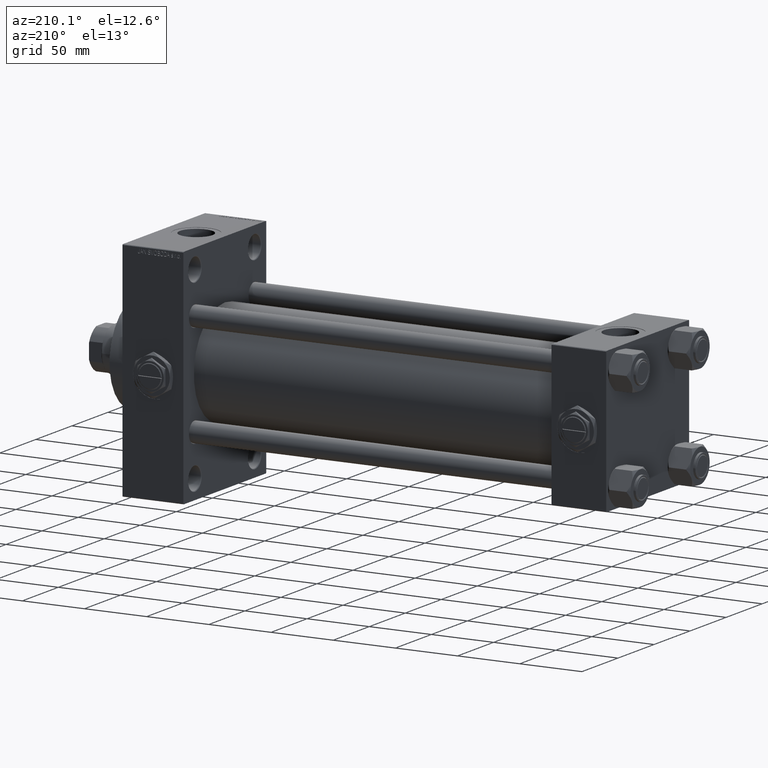
[diagram: clean part render]
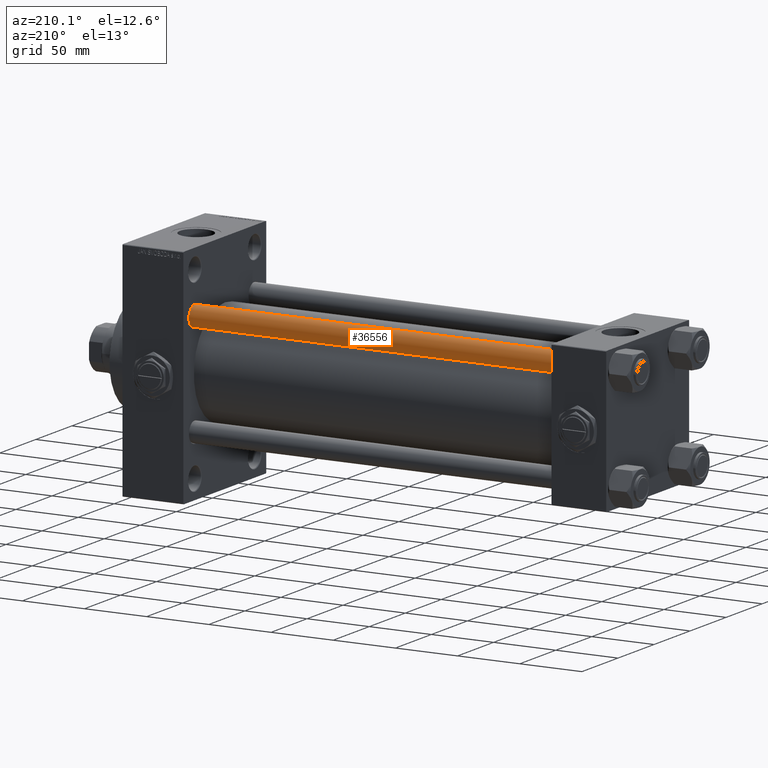
[diagram: same view with one face highlighted and labeled with its STEP entity id]
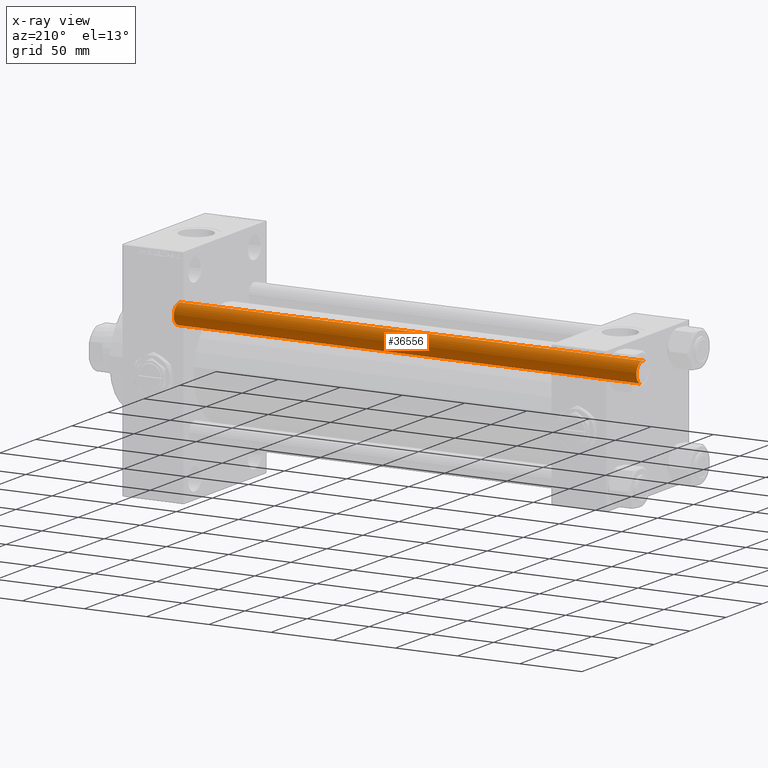
[diagram: x-ray of the same camera — body ghosted, the highlighted face saturated]
A machine part, auxiliary view. The second image highlights one B-rep face of the part: STEP entity #36556.
The next image is the same camera in x-ray: the body ghosted, the highlighted face saturated — about 0% of this face is hidden behind the body in this view.
In plain terms, the highlighted cylindrical surface (edge-blend (fillet) strip) has radius 8 mm, axis along (-1, -0, 0).
Its self-contained STEP definition (entity closure, byte-faithful):
#327 = DIRECTION ( 'NONE',  ( 1.000000000000000000, 0.000000000000000000, 0.000000000000000000 ) ) ;
#2599 = ORIENTED_EDGE ( 'NONE', *, *, #42548, .T. ) ;
#4365 = AXIS2_PLACEMENT_3D ( 'NONE', #24560, #5410, #20794 ) ;
#4605 = CARTESIAN_POINT ( 'NONE',  ( 0.000000000000000000, 0.000000000000000000, 372.5000000000000000 ) ) ;
#5410 = DIRECTION ( 'NONE',  ( -0.000000000000000000, -0.000000000000000000, 1.000000000000000000 ) ) ;
#5419 = VECTOR ( 'NONE', #42474, 1000.000000000000000 ) ;
#6218 = CARTESIAN_POINT ( 'NONE',  ( 8.000000000000000000, 9.797174393178825657E-16, 373.0000000000000000 ) ) ;
#6529 = DIRECTION ( 'NONE',  ( -1.000000000000000000, 0.000000000000000000, 0.000000000000000000 ) ) ;
#8733 = ORIENTED_EDGE ( 'NONE', *, *, #9603, .F. ) ;
#9603 = EDGE_CURVE ( 'NONE', #29708, #27768, #27133, .T. ) ;
#9824 = CARTESIAN_POINT ( 'NONE',  ( 0.000000000000000000, 0.000000000000000000, 373.0000000000000000 ) ) ;
#10068 = CYLINDRICAL_SURFACE ( 'NONE', #46923, 8.000000000000000000 ) ;
#11145 = CARTESIAN_POINT ( 'NONE',  ( -8.000000000000000000, 0.000000000000000000, 372.5000000000000000 ) ) ;
#13607 = FACE_OUTER_BOUND ( 'NONE', #46973, .T. ) ;
#14954 = CARTESIAN_POINT ( 'NONE',  ( -8.000000000000000000, 0.000000000000000000, 0.5000000000000559552 ) ) ;
#17445 = EDGE_CURVE ( 'NONE', #29708, #19828, #28894, .T. ) ;
#18220 = CARTESIAN_POINT ( 'NONE',  ( 8.000000000000000000, 9.797174393178825657E-16, 0.5000000000000559552 ) ) ;
#19828 = VERTEX_POINT ( 'NONE', #39811 ) ;
#20794 = DIRECTION ( 'NONE',  ( 1.000000000000000000, 0.000000000000000000, 0.000000000000000000 ) ) ;
#20857 = AXIS2_PLACEMENT_3D ( 'NONE', #4605, #30830, #327 ) ;
#21719 = VERTEX_POINT ( 'NONE', #18220 ) ;
#24560 = CARTESIAN_POINT ( 'NONE',  ( 0.000000000000000000, 0.000000000000000000, 0.5000000000000559552 ) ) ;
#26750 = ORIENTED_EDGE ( 'NONE', *, *, #17445, .T. ) ;
#27133 = LINE ( 'NONE', #46730, #5419 ) ;
#27768 = VERTEX_POINT ( 'NONE', #14954 ) ;
#28894 = CIRCLE ( 'NONE', #20857, 8.000000000000000000 ) ;
#29708 = VERTEX_POINT ( 'NONE', #11145 ) ;
#30830 = DIRECTION ( 'NONE',  ( 0.000000000000000000, 0.000000000000000000, -1.000000000000000000 ) ) ;
#32778 = ORIENTED_EDGE ( 'NONE', *, *, #41437, .T. ) ;
#34929 = CIRCLE ( 'NONE', #4365, 8.000000000000000000 ) ;
#35754 = VECTOR ( 'NONE', #48757, 1000.000000000000000 ) ;
#36556 = ADVANCED_FACE ( 'NONE', ( #13607 ), #10068, .T. ) ;
#39811 = CARTESIAN_POINT ( 'NONE',  ( 8.000000000000000000, 9.797174393178825657E-16, 372.5000000000000000 ) ) ;
#40715 = LINE ( 'NONE', #6218, #35754 ) ;
#41437 = EDGE_CURVE ( 'NONE', #21719, #27768, #34929, .T. ) ;
#42474 = DIRECTION ( 'NONE',  ( -0.000000000000000000, -0.000000000000000000, -1.000000000000000000 ) ) ;
#42548 = EDGE_CURVE ( 'NONE', #19828, #21719, #40715, .T. ) ;
#46730 = CARTESIAN_POINT ( 'NONE',  ( -8.000000000000000000, 0.000000000000000000, 373.0000000000000000 ) ) ;
#46923 = AXIS2_PLACEMENT_3D ( 'NONE', #9824, #48325, #6529 ) ;
#46973 = EDGE_LOOP ( 'NONE', ( #26750, #2599, #32778, #8733 ) ) ;
#48325 = DIRECTION ( 'NONE',  ( -0.000000000000000000, -0.000000000000000000, -1.000000000000000000 ) ) ;
#48757 = DIRECTION ( 'NONE',  ( -0.000000000000000000, -0.000000000000000000, -1.000000000000000000 ) ) ;